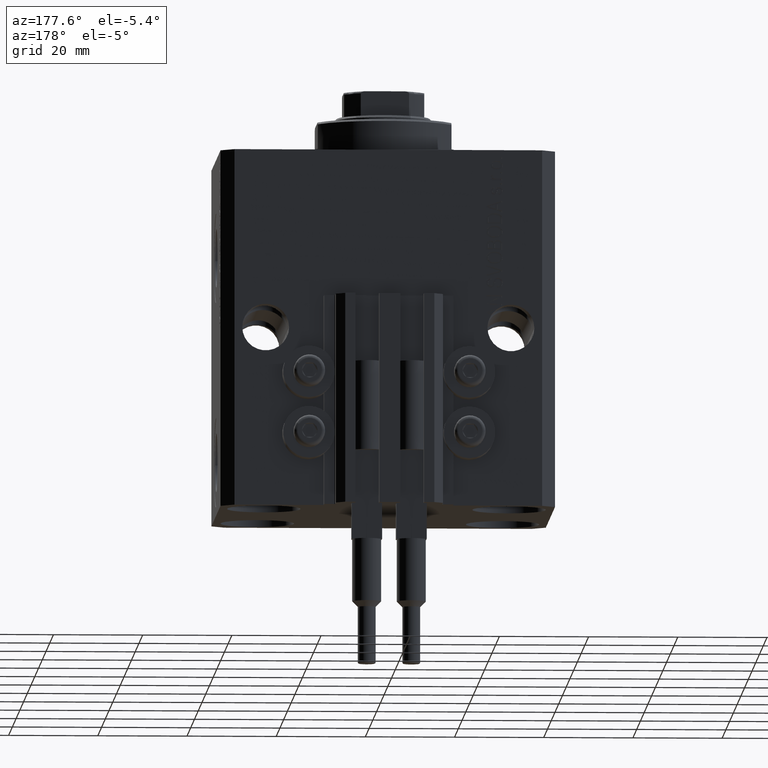
[diagram: clean part render]
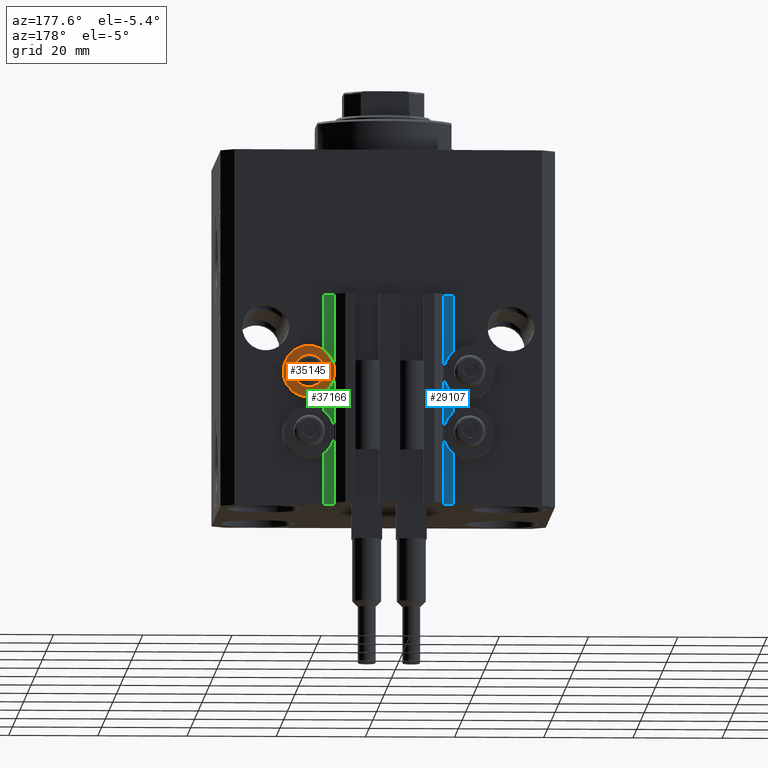
[diagram: same view with three faces highlighted in distinct colors, each labeled with its STEP entity id]
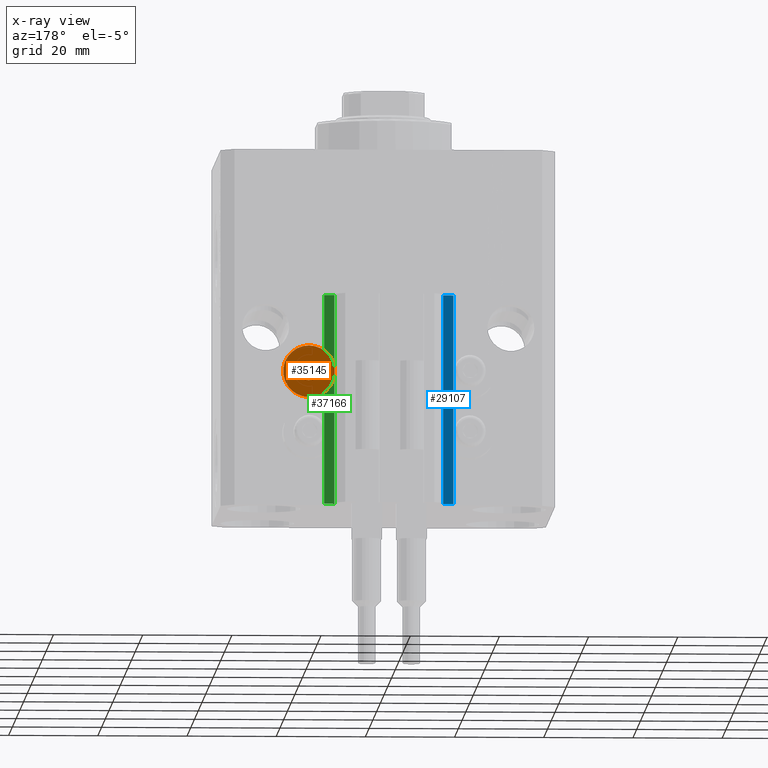
[diagram: x-ray of the same camera — body ghosted, the three highlighted faces saturated]
A machine part, auxiliary view with three faces highlighted in distinct colors.
The next image is the same camera in x-ray (body ghosted, the three faces saturated) — at least one of them is partly hidden behind the body in this view.
Their STEP definitions:

[orange] entity #35145 — the highlighted planar face has unit normal (0, -1, 0).
#16 = DIRECTION ( 'NONE',  ( -0.000000000000000000, 0.000000000000000000, -1.000000000000000000 ) ) ;
#639 = VERTEX_POINT ( 'NONE', #37935 ) ;
#1280 = DIRECTION ( 'NONE',  ( -0.000000000000000000, -1.000000000000000000, -0.000000000000000000 ) ) ;
#2257 = AXIS2_PLACEMENT_3D ( 'NONE', #29055, #47388, #24720 ) ;
#2355 = CARTESIAN_POINT ( 'NONE',  ( 18.00000000000000355, 32.49999999996100541, -52.40000000000000568 ) ) ;
#3161 = CARTESIAN_POINT ( 'NONE',  ( 12.20000000000000284, 32.49999999996100541, -50.39999999999999858 ) ) ;
#5342 = CIRCLE ( 'NONE', #2257, 5.799999999999999822 ) ;
#5860 = CARTESIAN_POINT ( 'NONE',  ( 18.00000000000000355, 32.49999999996100541, -44.60000000000000142 ) ) ;
#6035 = DIRECTION ( 'NONE',  ( 0.000000000000000000, 0.000000000000000000, 1.000000000000000000 ) ) ;
#7963 = DIRECTION ( 'NONE',  ( -0.000000000000000000, -1.000000000000000000, -0.000000000000000000 ) ) ;
#8558 = AXIS2_PLACEMENT_3D ( 'NONE', #39094, #33003, #6035 ) ;
#8753 = DIRECTION ( 'NONE',  ( 0.000000000000000000, 0.000000000000000000, 1.000000000000000000 ) ) ;
#10598 = EDGE_LOOP ( 'NONE', ( #19453, #23655 ) ) ;
#10972 = EDGE_CURVE ( 'NONE', #23348, #639, #20443, .T. ) ;
#12048 = DIRECTION ( 'NONE',  ( 0.000000000000000000, 0.000000000000000000, 1.000000000000000000 ) ) ;
#12781 = VERTEX_POINT ( 'NONE', #21317 ) ;
#13203 = CIRCLE ( 'NONE', #8558, 2.000000000000001776 ) ;
#15419 = CARTESIAN_POINT ( 'NONE',  ( 18.00000000000000355, 32.49999999996100541, -50.39999999999999858 ) ) ;
#16456 = CIRCLE ( 'NONE', #26476, 5.799999999999999822 ) ;
#17661 = AXIS2_PLACEMENT_3D ( 'NONE', #3161, #43889, #16 ) ;
#17836 = FACE_BOUND ( 'NONE', #10598, .T. ) ;
#19453 = ORIENTED_EDGE ( 'NONE', *, *, #39069, .T. ) ;
#19858 = ORIENTED_EDGE ( 'NONE', *, *, #34764, .F. ) ;
#20443 = CIRCLE ( 'NONE', #34293, 2.000000000000001776 ) ;
#21317 = CARTESIAN_POINT ( 'NONE',  ( 18.00000000000000355, 32.49999999996100541, -56.20000000000000284 ) ) ;
#21917 = FACE_OUTER_BOUND ( 'NONE', #31100, .T. ) ;
#23348 = VERTEX_POINT ( 'NONE', #2355 ) ;
#23655 = ORIENTED_EDGE ( 'NONE', *, *, #10972, .T. ) ;
#24720 = DIRECTION ( 'NONE',  ( 0.000000000000000000, 0.000000000000000000, 1.000000000000000000 ) ) ;
#26476 = AXIS2_PLACEMENT_3D ( 'NONE', #15419, #7963, #12048 ) ;
#29055 = CARTESIAN_POINT ( 'NONE',  ( 18.00000000000000355, 32.49999999996100541, -50.39999999999999858 ) ) ;
#29179 = PLANE ( 'NONE',  #17661 ) ;
#31100 = EDGE_LOOP ( 'NONE', ( #19858, #37572 ) ) ;
#32654 = VERTEX_POINT ( 'NONE', #5860 ) ;
#33003 = DIRECTION ( 'NONE',  ( -0.000000000000000000, -1.000000000000000000, -0.000000000000000000 ) ) ;
#34293 = AXIS2_PLACEMENT_3D ( 'NONE', #45410, #1280, #8753 ) ;
#34764 = EDGE_CURVE ( 'NONE', #32654, #12781, #5342, .T. ) ;
#35145 = ADVANCED_FACE ( 'NONE', ( #17836, #21917 ), #29179, .F. ) ;
#37572 = ORIENTED_EDGE ( 'NONE', *, *, #47563, .F. ) ;
#37935 = CARTESIAN_POINT ( 'NONE',  ( 18.00000000000000355, 32.49999999996100541, -48.39999999999999858 ) ) ;
#39069 = EDGE_CURVE ( 'NONE', #639, #23348, #13203, .T. ) ;
#39094 = CARTESIAN_POINT ( 'NONE',  ( 18.00000000000000355, 32.49999999996100541, -50.39999999999999858 ) ) ;
#43889 = DIRECTION ( 'NONE',  ( 0.000000000000000000, -1.000000000000000000, -0.000000000000000000 ) ) ;
#45410 = CARTESIAN_POINT ( 'NONE',  ( 18.00000000000000355, 32.49999999996100541, -50.39999999999999858 ) ) ;
#47388 = DIRECTION ( 'NONE',  ( -0.000000000000000000, -1.000000000000000000, -0.000000000000000000 ) ) ;
#47563 = EDGE_CURVE ( 'NONE', #12781, #32654, #16456, .T. ) ;

[blue] entity #29107 — the highlighted planar face has unit normal (0, 1, 0).
#1380 = LINE ( 'NONE', #5226, #32630 ) ;
#3380 = DIRECTION ( 'NONE',  ( 0.000000000000000000, 0.000000000000000000, 1.000000000000000000 ) ) ;
#3622 = CARTESIAN_POINT ( 'NONE',  ( -14.50000000000000000, 29.99999999999999289, -80.00000000000000000 ) ) ;
#4635 = AXIS2_PLACEMENT_3D ( 'NONE', #19665, #38267, #23768 ) ;
#4981 = PLANE ( 'NONE',  #4635 ) ;
#5226 = CARTESIAN_POINT ( 'NONE',  ( -12.20000000000000107, 29.99999999999998934, -33.00000000000000000 ) ) ;
#6855 = VERTEX_POINT ( 'NONE', #13558 ) ;
#9245 = ORIENTED_EDGE ( 'NONE', *, *, #46674, .F. ) ;
#9278 = VECTOR ( 'NONE', #11005, 1000.000000000000000 ) ;
#9402 = CARTESIAN_POINT ( 'NONE',  ( -14.50000000000000000, 29.99999999999999289, -33.00000000000000000 ) ) ;
#10207 = VERTEX_POINT ( 'NONE', #9402 ) ;
#11005 = DIRECTION ( 'NONE',  ( -1.000000000000000000, 1.508455196501571429E-15, 0.000000000000000000 ) ) ;
#11069 = LINE ( 'NONE', #3622, #36646 ) ;
#13198 = DIRECTION ( 'NONE',  ( 0.000000000000000000, 0.000000000000000000, 1.000000000000000000 ) ) ;
#13417 = ORIENTED_EDGE ( 'NONE', *, *, #23335, .F. ) ;
#13558 = CARTESIAN_POINT ( 'NONE',  ( -14.50000000000000000, 29.99999999999999289, -80.00000000000000000 ) ) ;
#14859 = LINE ( 'NONE', #29100, #9278 ) ;
#15487 = ORIENTED_EDGE ( 'NONE', *, *, #36827, .T. ) ;
#15650 = EDGE_CURVE ( 'NONE', #6855, #10207, #11069, .T. ) ;
#17802 = CARTESIAN_POINT ( 'NONE',  ( -12.20000000000000107, 29.99999999999998934, -80.00000000000000000 ) ) ;
#19665 = CARTESIAN_POINT ( 'NONE',  ( -12.20000000000000107, 29.99999999999998934, -80.00000000000000000 ) ) ;
#22231 = VERTEX_POINT ( 'NONE', #17802 ) ;
#23335 = EDGE_CURVE ( 'NONE', #22231, #30352, #27900, .T. ) ;
#23536 = FACE_OUTER_BOUND ( 'NONE', #32185, .T. ) ;
#23768 = DIRECTION ( 'NONE',  ( -1.000000000000000000, 1.508455196501571429E-15, 0.000000000000000000 ) ) ;
#27900 = LINE ( 'NONE', #46246, #41522 ) ;
#29100 = CARTESIAN_POINT ( 'NONE',  ( -12.20000000000000107, 29.99999999999998934, -80.00000000000000000 ) ) ;
#29107 = ADVANCED_FACE ( 'NONE', ( #23536 ), #4981, .T. ) ;
#30352 = VERTEX_POINT ( 'NONE', #43590 ) ;
#32185 = EDGE_LOOP ( 'NONE', ( #9245, #13417, #15487, #41120 ) ) ;
#32630 = VECTOR ( 'NONE', #45986, 1000.000000000000000 ) ;
#36646 = VECTOR ( 'NONE', #3380, 1000.000000000000000 ) ;
#36827 = EDGE_CURVE ( 'NONE', #22231, #6855, #14859, .T. ) ;
#38267 = DIRECTION ( 'NONE',  ( 1.508455196501571429E-15, 1.000000000000000000, -0.000000000000000000 ) ) ;
#41120 = ORIENTED_EDGE ( 'NONE', *, *, #15650, .T. ) ;
#41522 = VECTOR ( 'NONE', #13198, 1000.000000000000000 ) ;
#43590 = CARTESIAN_POINT ( 'NONE',  ( -12.20000000000000107, 29.99999999999998934, -33.00000000000000000 ) ) ;
#45986 = DIRECTION ( 'NONE',  ( -1.000000000000000000, 1.508455196501571429E-15, 0.000000000000000000 ) ) ;
#46246 = CARTESIAN_POINT ( 'NONE',  ( -12.20000000000000107, 29.99999999999998934, -80.00000000000000000 ) ) ;
#46674 = EDGE_CURVE ( 'NONE', #30352, #10207, #1380, .T. ) ;

[green] entity #37166 — the highlighted planar face has unit normal (0, 1, 0).
#963 = LINE ( 'NONE', #26734, #8629 ) ;
#4510 = LINE ( 'NONE', #40944, #19181 ) ;
#4768 = ORIENTED_EDGE ( 'NONE', *, *, #44299, .F. ) ;
#5739 = DIRECTION ( 'NONE',  ( -1.000000000000000000, 0.000000000000000000, 0.000000000000000000 ) ) ;
#5843 = CARTESIAN_POINT ( 'NONE',  ( 14.49999999999999645, 30.00000000000002487, -80.00000000000000000 ) ) ;
#6329 = ORIENTED_EDGE ( 'NONE', *, *, #26696, .T. ) ;
#6996 = VERTEX_POINT ( 'NONE', #45783 ) ;
#8629 = VECTOR ( 'NONE', #5739, 1000.000000000000000 ) ;
#11197 = CARTESIAN_POINT ( 'NONE',  ( 12.20000000000000107, 30.00000000000002487, -80.00000000000000000 ) ) ;
#11465 = ORIENTED_EDGE ( 'NONE', *, *, #45626, .F. ) ;
#12389 = CARTESIAN_POINT ( 'NONE',  ( 12.20000000000000107, 30.00000000000002487, -80.00000000000000000 ) ) ;
#12998 = VERTEX_POINT ( 'NONE', #12389 ) ;
#13094 = AXIS2_PLACEMENT_3D ( 'NONE', #16219, #26367, #27084 ) ;
#16219 = CARTESIAN_POINT ( 'NONE',  ( 14.49999999999999645, 30.00000000000002487, -80.00000000000000000 ) ) ;
#17916 = VERTEX_POINT ( 'NONE', #5843 ) ;
#19181 = VECTOR ( 'NONE', #41173, 1000.000000000000000 ) ;
#19826 = FACE_OUTER_BOUND ( 'NONE', #30910, .T. ) ;
#19972 = CARTESIAN_POINT ( 'NONE',  ( 14.49999999999999645, 30.00000000000002487, -33.00000000000000000 ) ) ;
#22035 = LINE ( 'NONE', #11197, #35460 ) ;
#23544 = CARTESIAN_POINT ( 'NONE',  ( 14.49999999999999645, 30.00000000000002487, -80.00000000000000000 ) ) ;
#26367 = DIRECTION ( 'NONE',  ( 0.000000000000000000, 1.000000000000000000, -0.000000000000000000 ) ) ;
#26696 = EDGE_CURVE ( 'NONE', #17916, #12998, #4510, .T. ) ;
#26734 = CARTESIAN_POINT ( 'NONE',  ( 14.49999999999999645, 30.00000000000002487, -33.00000000000000000 ) ) ;
#27084 = DIRECTION ( 'NONE',  ( 0.000000000000000000, 0.000000000000000000, 1.000000000000000000 ) ) ;
#29488 = VECTOR ( 'NONE', #37797, 1000.000000000000000 ) ;
#30910 = EDGE_LOOP ( 'NONE', ( #4768, #11465, #6329, #32255 ) ) ;
#31116 = VERTEX_POINT ( 'NONE', #19972 ) ;
#32255 = ORIENTED_EDGE ( 'NONE', *, *, #37895, .T. ) ;
#35460 = VECTOR ( 'NONE', #40390, 1000.000000000000000 ) ;
#37166 = ADVANCED_FACE ( 'NONE', ( #19826 ), #41327, .T. ) ;
#37797 = DIRECTION ( 'NONE',  ( 0.000000000000000000, 0.000000000000000000, 1.000000000000000000 ) ) ;
#37895 = EDGE_CURVE ( 'NONE', #12998, #6996, #22035, .T. ) ;
#38277 = LINE ( 'NONE', #23544, #29488 ) ;
#40390 = DIRECTION ( 'NONE',  ( 0.000000000000000000, 0.000000000000000000, 1.000000000000000000 ) ) ;
#40944 = CARTESIAN_POINT ( 'NONE',  ( 14.49999999999999645, 30.00000000000002487, -80.00000000000000000 ) ) ;
#41173 = DIRECTION ( 'NONE',  ( -1.000000000000000000, 0.000000000000000000, 0.000000000000000000 ) ) ;
#41327 = PLANE ( 'NONE',  #13094 ) ;
#44299 = EDGE_CURVE ( 'NONE', #31116, #6996, #963, .T. ) ;
#45626 = EDGE_CURVE ( 'NONE', #17916, #31116, #38277, .T. ) ;
#45783 = CARTESIAN_POINT ( 'NONE',  ( 12.20000000000000107, 30.00000000000002487, -33.00000000000000000 ) ) ;